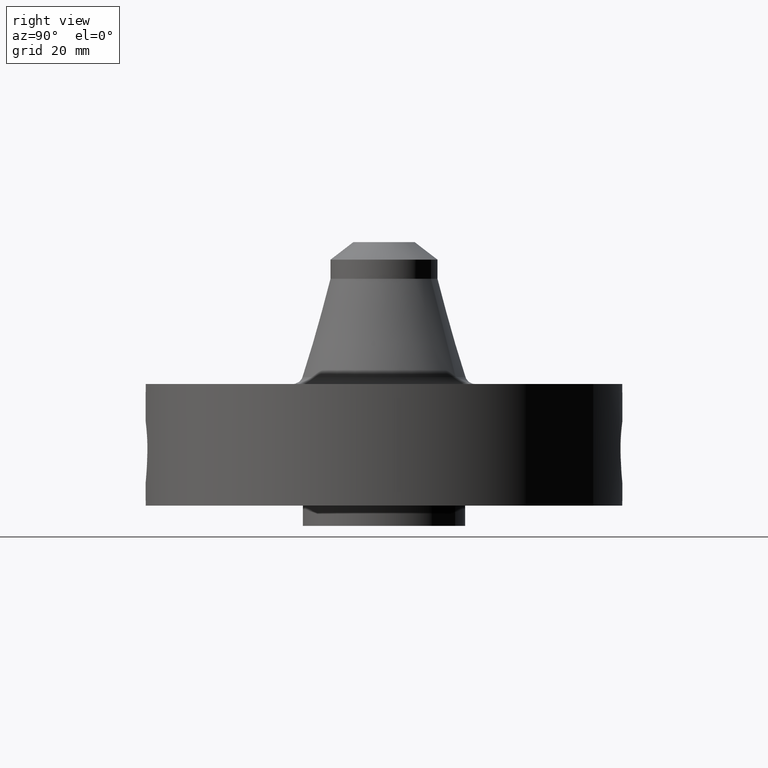
[diagram: clean part render]
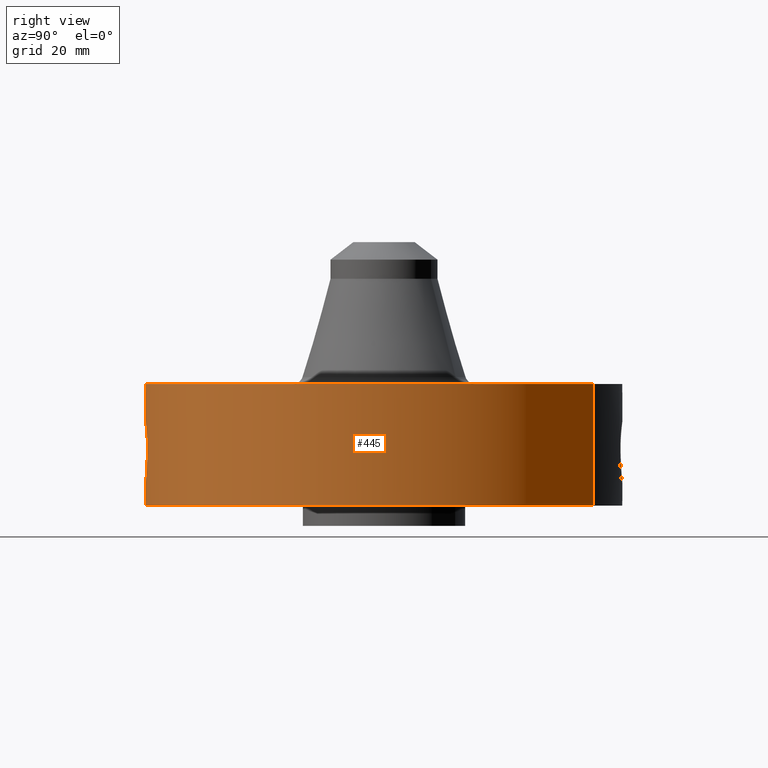
[diagram: same view with one face highlighted and labeled with its STEP entity id]
A machine part, right view. The second image highlights one B-rep face of the part: STEP entity #445.
In plain terms, the highlighted cylindrical surface (partial cylindrical patch) has radius 74.676 mm, axis along (0, 0, -1).
Its self-contained STEP definition (entity closure, byte-faithful):
#38=AXIS2_PLACEMENT_3D('Cylinder Axis2P3D',#35,#36,#37) ;
#200=AXIS2_PLACEMENT_3D('Circle Axis2P3D',#198,#199,$) ;
#318=AXIS2_PLACEMENT_3D('Circle Axis2P3D',#316,#317,$) ;
#35=CARTESIAN_POINT('Axis2P3D Location',(0.,0.,1.75000000001)) ;
#44=CARTESIAN_POINT('Vertex',(-1.4095110835,-2.58009273197,0.250000000001)) ;
#46=CARTESIAN_POINT('Vertex',(1.4095110835,2.58009273197,0.250000000001)) ;
#49=CARTESIAN_POINT('Line Origine',(-1.4095110835,-2.58009273197,1.)) ;
#53=CARTESIAN_POINT('Vertex',(-1.4095110835,-2.58009273197,1.75000000001)) ;
#60=CARTESIAN_POINT('Vertex',(1.4095110835,2.58009273197,1.75000000001)) ;
#63=CARTESIAN_POINT('Line Origine',(1.4095110835,2.58009273197,1.)) ;
#198=CARTESIAN_POINT('Axis2P3D Location',(0.,0.,0.250000000001)) ;
#316=CARTESIAN_POINT('Axis2P3D Location',(0.,0.,1.75000000001)) ;
#328=CARTESIAN_POINT('Control Point',(0.169700366944,-2.93509825824,1.25063443807)) ;
#329=CARTESIAN_POINT('Control Point',(0.131085530405,-2.93733087581,1.27180932063)) ;
#330=CARTESIAN_POINT('Control Point',(0.0889177435285,-2.93909301677,1.28658372765)) ;
#331=CARTESIAN_POINT('Control Point',(0.0448209571627,-2.93998913749,1.29402874794)) ;
#332=CARTESIAN_POINT('Control Point',(0.000718274753928,-2.93999991227,1.29411849394)) ;
#333=CARTESIAN_POINT('Vertex',(0.169700366944,-2.93509825824,1.25063443807)) ;
#335=CARTESIAN_POINT('Vertex',(0.000717904281619,-2.93999991236,1.29411850387)) ;
#339=CARTESIAN_POINT('Control Point',(0.199791103391,-2.9332036266,1.23211910499)) ;
#340=CARTESIAN_POINT('Control Point',(0.190079582895,-2.93386511337,1.23878621863)) ;
#341=CARTESIAN_POINT('Control Point',(0.180032889643,-2.93450085647,1.24496848232)) ;
#342=CARTESIAN_POINT('Control Point',(0.169700366944,-2.93509825824,1.25063443807)) ;
#343=CARTESIAN_POINT('Vertex',(0.199780816623,-2.93320402657,1.23212615744)) ;
#347=CARTESIAN_POINT('Control Point',(0.345063619151,-2.91967996513,0.863306930424)) ;
#348=CARTESIAN_POINT('Control Point',(0.358309803901,-2.91811445915,0.902767231195)) ;
#349=CARTESIAN_POINT('Control Point',(0.364827686297,-2.91726797105,0.944868714413)) ;
#350=CARTESIAN_POINT('Control Point',(0.363474119773,-2.91744520393,0.98806441501)) ;
#351=CARTESIAN_POINT('Control Point',(0.344937028357,-2.91981225221,1.07342997876)) ;
#352=CARTESIAN_POINT('Control Point',(0.299056819311,-2.92490799636,1.14752011691)) ;
#353=CARTESIAN_POINT('Control Point',(0.269831477905,-2.92785982733,1.18076998146)) ;
#354=CARTESIAN_POINT('Control Point',(0.236375470813,-2.93071186525,1.20904408377)) ;
#355=CARTESIAN_POINT('Control Point',(0.199780555976,-2.933204345,1.23212576192)) ;
#356=CARTESIAN_POINT('Vertex',(0.345064099859,-2.91967961571,0.863306681734)) ;
#360=CARTESIAN_POINT('Control Point',(0.33827641117,-2.92047411728,0.837346821817)) ;
#361=CARTESIAN_POINT('Control Point',(0.34086559577,-2.9201742139,0.845911270964)) ;
#362=CARTESIAN_POINT('Control Point',(0.343130752325,-2.91990840291,0.85457459032)) ;
#363=CARTESIAN_POINT('Control Point',(0.345065244732,-2.91967977301,0.863311889826)) ;
#364=CARTESIAN_POINT('Vertex',(0.338277877933,-2.92047432356,0.837351409242)) ;
#368=CARTESIAN_POINT('Control Point',(0.0275173309536,-2.93987122109,0.530942006538)) ;
#369=CARTESIAN_POINT('Control Point',(0.0762223620915,-2.93941533974,0.537299414907)) ;
#370=CARTESIAN_POINT('Control Point',(0.123500764678,-2.93796409919,0.552621494234)) ;
#371=CARTESIAN_POINT('Control Point',(0.166891855816,-2.93566147338,0.576269392953)) ;
#372=CARTESIAN_POINT('Control Point',(0.241844519419,-2.93047533837,0.634906614358)) ;
#373=CARTESIAN_POINT('Control Point',(0.294766629762,-2.92532991634,0.711484743938)) ;
#374=CARTESIAN_POINT('Control Point',(0.315003635828,-2.92313640279,0.751985164288)) ;
#375=CARTESIAN_POINT('Control Point',(0.329503476913,-2.92149028267,0.794252683948)) ;
#376=CARTESIAN_POINT('Control Point',(0.338277309264,-2.92047401326,0.837351374146)) ;
#377=CARTESIAN_POINT('Vertex',(0.0275173309536,-2.93987122109,0.530942006538)) ;
#381=CARTESIAN_POINT('Control Point',(0.0275173309536,-2.93987122109,0.530942006538)) ;
#382=CARTESIAN_POINT('Control Point',(0.0183369240002,-2.93995715012,0.53084166981)) ;
#383=CARTESIAN_POINT('Control Point',(0.00915835377777,-2.94000000851,0.530985895771)) ;
#384=CARTESIAN_POINT('Control Point',(-2.72878353014E-006,-2.94000000001,0.531374667804)) ;
#385=CARTESIAN_POINT('Vertex',(-2.72878353691E-006,-2.94000000001,0.531374667804)) ;
#389=CARTESIAN_POINT('Control Point',(-0.196461758711,-2.93342850219,0.580384428303)) ;
#390=CARTESIAN_POINT('Control Point',(-0.150541513981,-2.93650393833,0.558074536738)) ;
#391=CARTESIAN_POINT('Control Point',(-0.101543590141,-2.93882208897,0.542443363995)) ;
#392=CARTESIAN_POINT('Control Point',(-0.050988795654,-2.93999995269,0.533538381139)) ;
#393=CARTESIAN_POINT('Control Point',(-2.72878353798E-006,-2.94000000001,0.531374667804)) ;
#394=CARTESIAN_POINT('Vertex',(-0.196461421185,-2.93342346249,0.580384428303)) ;
#398=CARTESIAN_POINT('Control Point',(-0.196461794057,-2.93342849982,0.580384447708)) ;
#399=CARTESIAN_POINT('Control Point',(-0.196533175311,-2.93342371917,0.580423635179)) ;
#400=CARTESIAN_POINT('Control Point',(-0.196604556332,-2.93341893505,0.580462822649)) ;
#401=CARTESIAN_POINT('Vertex',(-0.196604556332,-2.93341893505,0.580462822649)) ;
#405=CARTESIAN_POINT('Control Point',(-0.196604556332,-2.93341893505,0.580462822649)) ;
#406=CARTESIAN_POINT('Control Point',(-0.238591966427,-2.93060484122,0.606305192261)) ;
#407=CARTESIAN_POINT('Control Point',(-0.276117850065,-2.9273351627,0.639020628507)) ;
#408=CARTESIAN_POINT('Control Point',(-0.307968830058,-2.92401886321,0.676947773796)) ;
#409=CARTESIAN_POINT('Control Point',(-0.372076285093,-2.91667343954,0.77944308817)) ;
#410=CARTESIAN_POINT('Control Point',(-0.400070774912,-2.91264590125,0.897593415754)) ;
#411=CARTESIAN_POINT('Control Point',(-0.40373880984,-2.91210381362,0.969863240954)) ;
#412=CARTESIAN_POINT('Control Point',(-0.394391610191,-2.91351385719,1.04192148771)) ;
#413=CARTESIAN_POINT('Control Point',(-0.372039707881,-2.91636528162,1.11050070547)) ;
#414=CARTESIAN_POINT('Vertex',(-0.372039707881,-2.91636528162,1.11050070547)) ;
#418=CARTESIAN_POINT('Control Point',(-0.372039707881,-2.91636528162,1.11050070547)) ;
#419=CARTESIAN_POINT('Control Point',(-0.322920722342,-2.92263137357,1.18613831541)) ;
#420=CARTESIAN_POINT('Control Point',(-0.251553256811,-2.93070739541,1.24504313062)) ;
#421=CARTESIAN_POINT('Control Point',(-0.169948933711,-2.93699921376,1.28172369612)) ;
#422=CARTESIAN_POINT('Control Point',(-0.0841723274104,-2.94000074044,1.29828021431)) ;
#423=CARTESIAN_POINT('Control Point',(2.58579354897E-005,-2.9399999999,1.29415298444)) ;
#424=CARTESIAN_POINT('Vertex',(2.58579354886E-005,-2.9399999999,1.29415298444)) ;
#428=CARTESIAN_POINT('Control Point',(0.000717904267248,-2.93999991236,1.29411850386)) ;
#429=CARTESIAN_POINT('Control Point',(0.000371903035692,-2.93999999685,1.29413602199)) ;
#430=CARTESIAN_POINT('Control Point',(2.58579462899E-005,-2.9399999999,1.29415298443)) ;
#36=DIRECTION('Axis2P3D Direction',(0.,0.,-0.0393700787402)) ;
#37=DIRECTION('Axis2P3D XDirection',(0.0188750212049,0.0345504945626,0.)) ;
#50=DIRECTION('Vector Direction',(0.,0.,-0.0393700787402)) ;
#64=DIRECTION('Vector Direction',(0.,0.,-0.0393700787402)) ;
#199=DIRECTION('Axis2P3D Direction',(0.,0.,-0.0393700787402)) ;
#317=DIRECTION('Axis2P3D Direction',(0.,0.,-0.0393700787402)) ;
#51=VECTOR('Line Direction',#50,0.0393700787402) ;
#65=VECTOR('Line Direction',#64,0.0393700787402) ;
#322=ORIENTED_EDGE('',*,*,#202,.F.) ;
#323=ORIENTED_EDGE('',*,*,#67,.T.) ;
#324=ORIENTED_EDGE('',*,*,#320,.T.) ;
#325=ORIENTED_EDGE('',*,*,#55,.F.) ;
#433=ORIENTED_EDGE('',*,*,#337,.F.) ;
#434=ORIENTED_EDGE('',*,*,#345,.F.) ;
#435=ORIENTED_EDGE('',*,*,#358,.F.) ;
#436=ORIENTED_EDGE('',*,*,#366,.F.) ;
#437=ORIENTED_EDGE('',*,*,#379,.F.) ;
#438=ORIENTED_EDGE('',*,*,#387,.T.) ;
#439=ORIENTED_EDGE('',*,*,#396,.F.) ;
#440=ORIENTED_EDGE('',*,*,#403,.T.) ;
#441=ORIENTED_EDGE('',*,*,#416,.T.) ;
#442=ORIENTED_EDGE('',*,*,#426,.T.) ;
#443=ORIENTED_EDGE('',*,*,#431,.F.) ;
#444=FACE_BOUND('',#432,.T.) ;
#445=ADVANCED_FACE('PartBody',(#326,#444),#39,.T.) ;
#327=B_SPLINE_CURVE_WITH_KNOTS('',4,(#328,#329,#330,#331,#332),.UNSPECIFIED.,.F.,.U.,(5,5),(0.,6.52375943355),.UNSPECIFIED.) ;
#338=B_SPLINE_CURVE_WITH_KNOTS('',3,(#339,#340,#341,#342),.UNSPECIFIED.,.F.,.U.,(4,4),(27.4276008443,28.7368170382),.UNSPECIFIED.) ;
#346=B_SPLINE_CURVE_WITH_KNOTS('',5,(#347,#348,#349,#350,#351,#352,#353,#354,#355),.UNSPECIFIED.,.F.,.U.,(6,3,6),(0.,7.77866996565,15.8636824919),.UNSPECIFIED.) ;
#359=B_SPLINE_CURVE_WITH_KNOTS('',3,(#360,#361,#362,#363),.UNSPECIFIED.,.F.,.U.,(4,4),(10.8529360698,11.846980382),.UNSPECIFIED.) ;
#367=B_SPLINE_CURVE_WITH_KNOTS('',5,(#368,#369,#370,#371,#372,#373,#374,#375,#376),.UNSPECIFIED.,.F.,.U.,(6,3,6),(0.,8.53785437717,16.7787224424),.UNSPECIFIED.) ;
#380=B_SPLINE_CURVE_WITH_KNOTS('',3,(#381,#382,#383,#384),.UNSPECIFIED.,.F.,.U.,(4,4),(0.,0.957440216897),.UNSPECIFIED.) ;
#388=B_SPLINE_CURVE_WITH_KNOTS('',4,(#389,#390,#391,#392,#393),.UNSPECIFIED.,.F.,.U.,(5,5),(0.,7.10485332455),.UNSPECIFIED.) ;
#397=B_SPLINE_CURVE_WITH_KNOTS('',2,(#398,#399,#400),.UNSPECIFIED.,.F.,.U.,(3,3),(-0.00207138540731,0.00207241137114),.UNSPECIFIED.) ;
#404=B_SPLINE_CURVE_WITH_KNOTS('',5,(#405,#406,#407,#408,#409,#410,#411,#412,#413),.UNSPECIFIED.,.F.,.U.,(6,3,6),(0.,8.57504491545,21.133124485),.UNSPECIFIED.) ;
#417=B_SPLINE_CURVE_WITH_KNOTS('',5,(#418,#419,#420,#421,#422,#423),.UNSPECIFIED.,.F.,.U.,(6,6),(0.,15.7383793429),.UNSPECIFIED.) ;
#427=B_SPLINE_CURVE_WITH_KNOTS('',2,(#428,#429,#430),.UNSPECIFIED.,.F.,.U.,(3,3),(1.20449888297,1.2303720743),.UNSPECIFIED.) ;
#201=CIRCLE('generated circle',#200,2.94000000001) ;
#319=CIRCLE('generated circle',#318,2.94000000001) ;
#39=CYLINDRICAL_SURFACE('generated cylinder',#38,2.94000000001) ;
#55=EDGE_CURVE('',#45,#54,#52,.F.) ;
#67=EDGE_CURVE('',#47,#61,#66,.F.) ;
#202=EDGE_CURVE('',#47,#45,#201,.T.) ;
#320=EDGE_CURVE('',#61,#54,#319,.T.) ;
#337=EDGE_CURVE('',#334,#336,#327,.T.) ;
#345=EDGE_CURVE('',#344,#334,#338,.T.) ;
#358=EDGE_CURVE('',#357,#344,#346,.T.) ;
#366=EDGE_CURVE('',#365,#357,#359,.T.) ;
#379=EDGE_CURVE('',#378,#365,#367,.T.) ;
#387=EDGE_CURVE('',#378,#386,#380,.T.) ;
#396=EDGE_CURVE('',#395,#386,#388,.T.) ;
#403=EDGE_CURVE('',#395,#402,#397,.T.) ;
#416=EDGE_CURVE('',#402,#415,#404,.T.) ;
#426=EDGE_CURVE('',#415,#425,#417,.T.) ;
#431=EDGE_CURVE('',#336,#425,#427,.T.) ;
#321=EDGE_LOOP('',(#322,#323,#324,#325)) ;
#432=EDGE_LOOP('',(#433,#434,#435,#436,#437,#438,#439,#440,#441,#442,#443)) ;
#326=FACE_OUTER_BOUND('',#321,.T.) ;
#52=LINE('Line',#49,#51) ;
#66=LINE('Line',#63,#65) ;
#45=VERTEX_POINT('',#44) ;
#47=VERTEX_POINT('',#46) ;
#54=VERTEX_POINT('',#53) ;
#61=VERTEX_POINT('',#60) ;
#334=VERTEX_POINT('',#333) ;
#336=VERTEX_POINT('',#335) ;
#344=VERTEX_POINT('',#343) ;
#357=VERTEX_POINT('',#356) ;
#365=VERTEX_POINT('',#364) ;
#378=VERTEX_POINT('',#377) ;
#386=VERTEX_POINT('',#385) ;
#395=VERTEX_POINT('',#394) ;
#402=VERTEX_POINT('',#401) ;
#415=VERTEX_POINT('',#414) ;
#425=VERTEX_POINT('',#424) ;